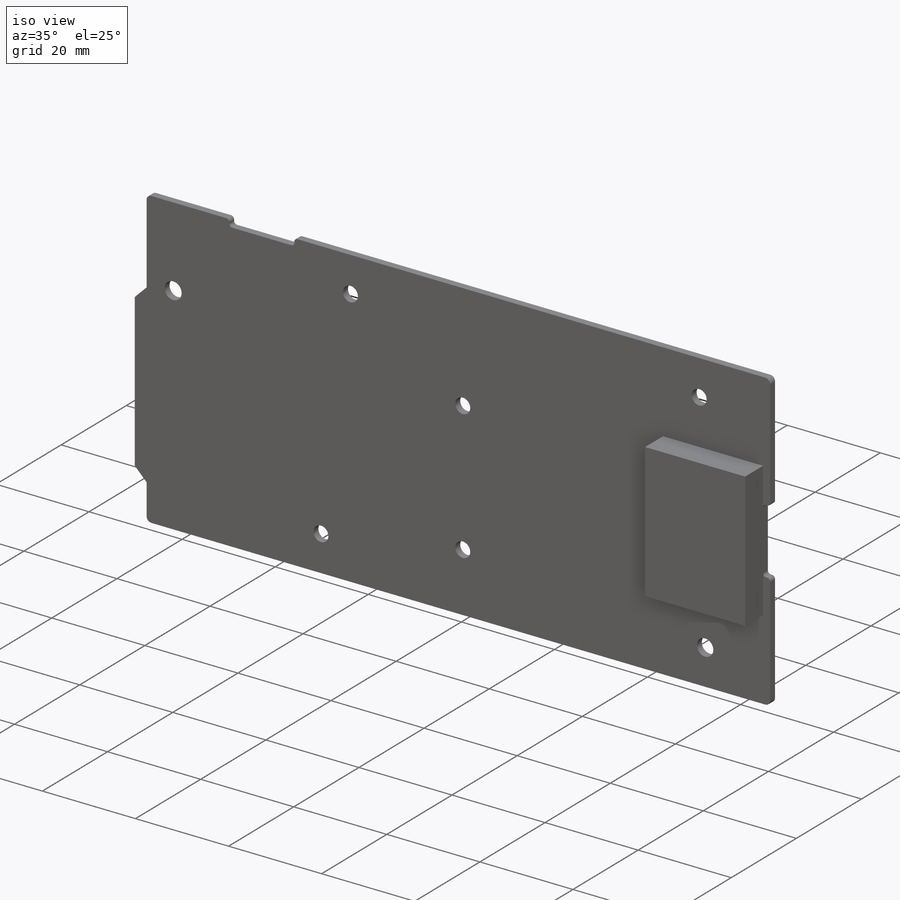
[diagram: iso view]
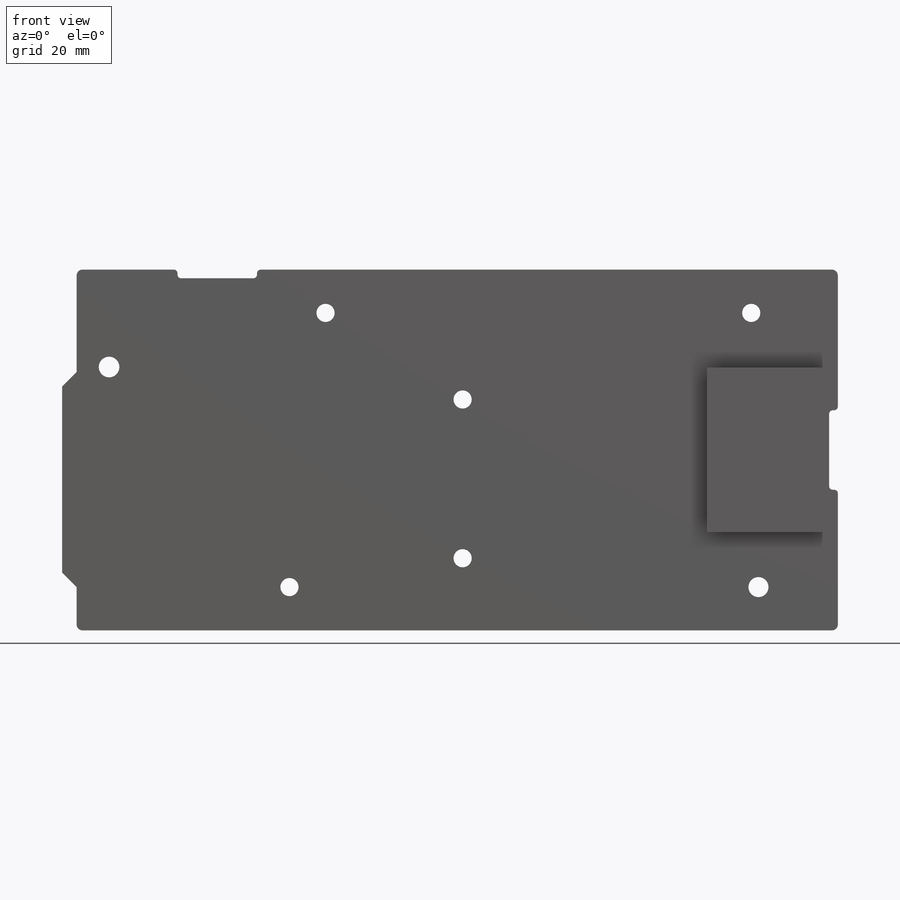
[diagram: front view]
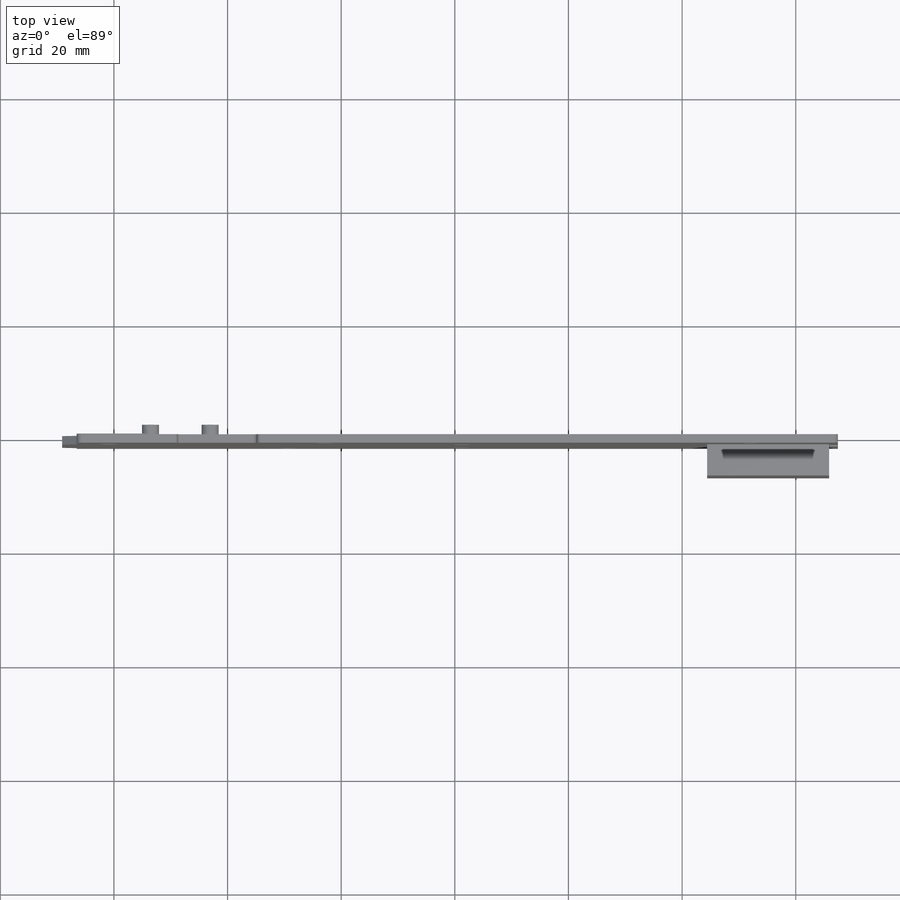
[diagram: top view]
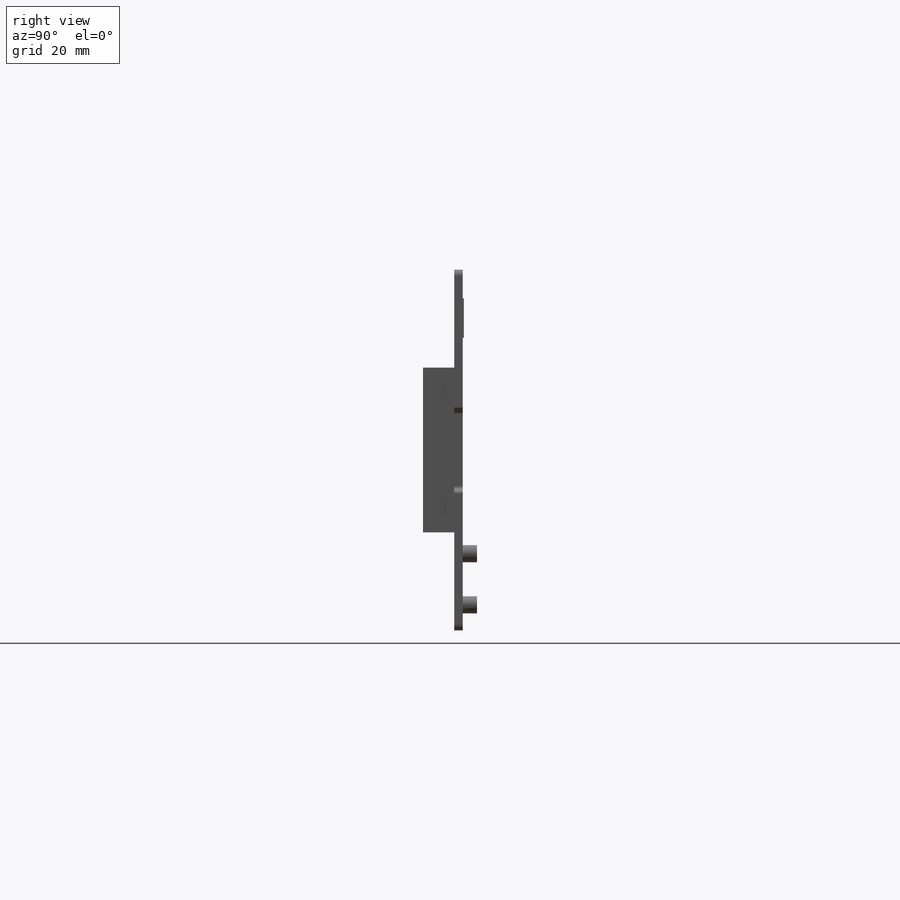
[diagram: right view]
SOLIDWORKS PART (.sldprt)
format: sldprt  version: not decoded by parser v0  size: 430,080 bytes
history: native  units: mm
features: sketch x4, extrude x4, plane x3, material x1 (+9 scaffold rows collapsed)
feature tree (21):
  scaffold x9  (default folders/planes/origin — collapsed)
  material  "Material <não especificado>"
  plane  "Plano frontal"
  plane  "Plano superior"
  plane  "Plano direito"
  sketch  "Esboço2"
  extrude  "Ressalto-extrusão1"  Depth=1.5mm
  sketch  "Arquivos locais1"  dims[D5=3.0mm D1=23.5mm D2=4.5mm D3=10.5mm D4=9.0mm]
  extrude  "Ressalto-extrusão2"  Depth=2.5mm
  sketch  "Arquivos locais2"  dims[D1=12.0mm D2=12.0mm]
  extrude  "Ressalto-extrusão3"  Depth=0.2mm
  sketch  "Arquivos locais3"  dims[D1=23.0mm D2=14.5mm D3=14.5mm]
  extrude  "Ressalto-extrusão4"  Depth=5.5mm
decode coverage: 7 of 8 modeling features carry decoded parameters
note: suppression state not decoded; provenance and decode notes live in map.json
